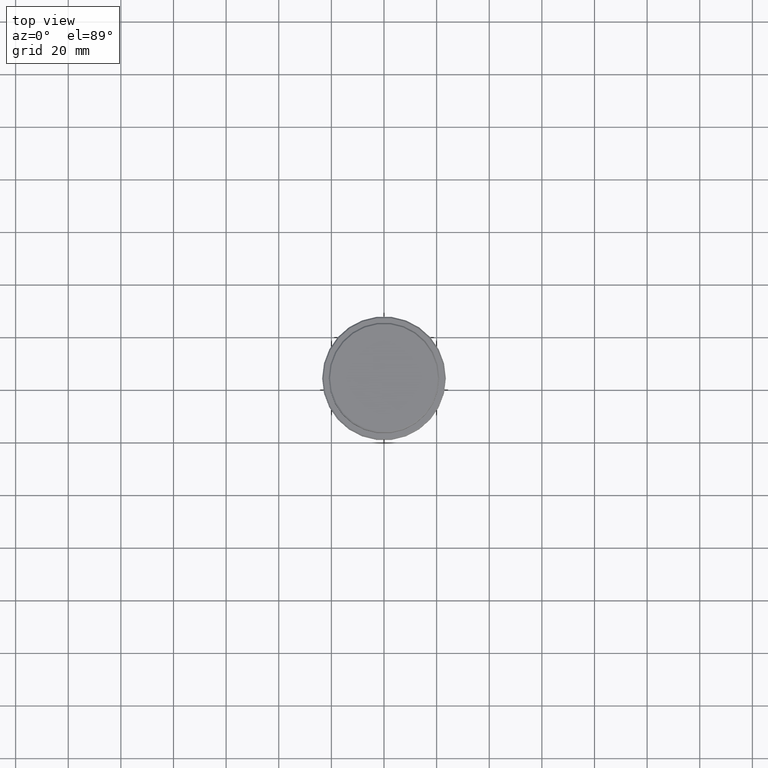
[diagram: clean part render]
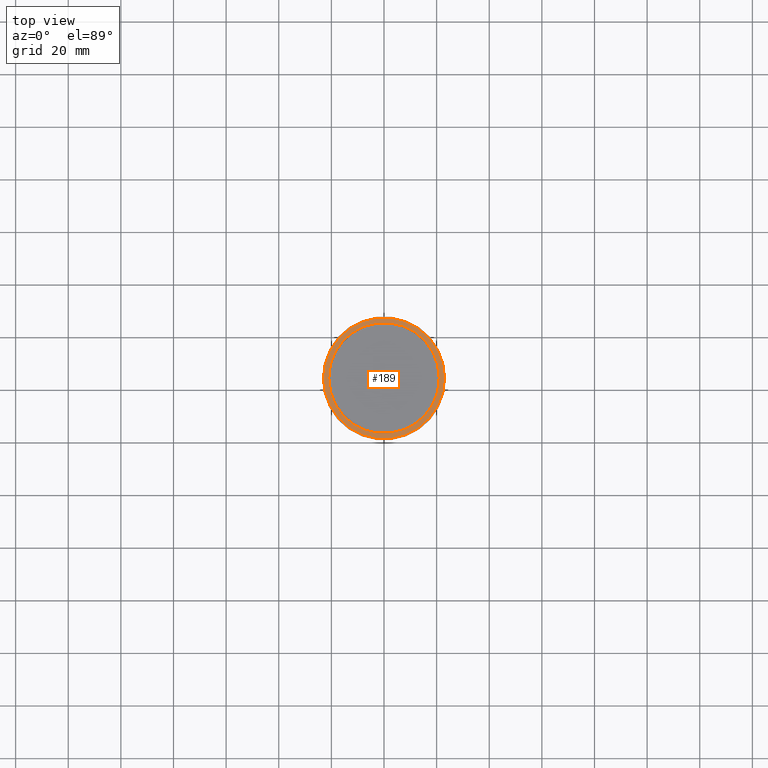
[diagram: same view with one face highlighted and labeled with its STEP entity id]
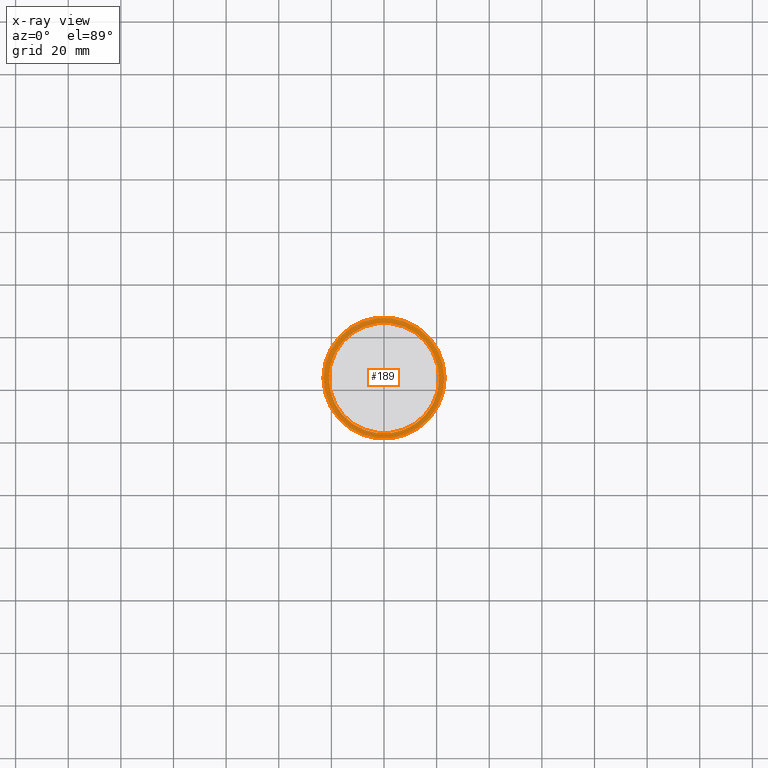
[diagram: x-ray of the same camera — body ghosted, the highlighted face saturated]
A machine part, top view. The second image highlights one B-rep face of the part: STEP entity #189.
The next image is the same camera in x-ray: the body ghosted, the highlighted face saturated — about 0% of this face is hidden behind the body in this view.
In plain terms, the highlighted planar face has unit normal (0, -0, 1).
Its self-contained STEP definition (entity closure, byte-faithful):
#26 = FACE_OUTER_BOUND ( 'NONE', #623, .T. ) ;
#141 = AXIS2_PLACEMENT_3D ( 'NONE', #332, #1211, #150 ) ;
#150 = DIRECTION ( 'NONE',  ( 1.000000000000000000, 0.000000000000000000, 0.000000000000000000 ) ) ;
#152 = ORIENTED_EDGE ( 'NONE', *, *, #225, .T. ) ;
#160 = CIRCLE ( 'NONE', #231, 22.99999999999996803 ) ;
#189 = ADVANCED_FACE ( 'NONE', ( #26, #1006 ), #462, .T. ) ;
#225 = EDGE_CURVE ( 'NONE', #655, #560, #160, .T. ) ;
#231 = AXIS2_PLACEMENT_3D ( 'NONE', #489, #1153, #589 ) ;
#332 = CARTESIAN_POINT ( 'NONE',  ( 0.000000000000000000, 0.000000000000000000, -9.000000000000001776 ) ) ;
#351 = EDGE_CURVE ( 'NONE', #560, #655, #1258, .T. ) ;
#458 = AXIS2_PLACEMENT_3D ( 'NONE', #636, #748, #1075 ) ;
#462 = PLANE ( 'NONE',  #1096 ) ;
#466 = CARTESIAN_POINT ( 'NONE',  ( -22.99999999999996803, 0.000000000000000000, -9.000000000000001776 ) ) ;
#484 = DIRECTION ( 'NONE',  ( -0.000000000000000000, -0.000000000000000000, 1.000000000000000000 ) ) ;
#489 = CARTESIAN_POINT ( 'NONE',  ( 0.000000000000000000, 0.000000000000000000, -9.000000000000001776 ) ) ;
#519 = ORIENTED_EDGE ( 'NONE', *, *, #1179, .T. ) ;
#560 = VERTEX_POINT ( 'NONE', #466 ) ;
#579 = DIRECTION ( 'NONE',  ( 1.000000000000000000, 0.000000000000000000, 0.000000000000000000 ) ) ;
#589 = DIRECTION ( 'NONE',  ( 1.000000000000000000, 0.000000000000000000, 0.000000000000000000 ) ) ;
#608 = AXIS2_PLACEMENT_3D ( 'NONE', #1279, #484, #921 ) ;
#611 = EDGE_CURVE ( 'NONE', #978, #1052, #747, .T. ) ;
#623 = EDGE_LOOP ( 'NONE', ( #1214, #152 ) ) ;
#636 = CARTESIAN_POINT ( 'NONE',  ( 0.000000000000000000, 0.000000000000000000, -9.000000000000001776 ) ) ;
#655 = VERTEX_POINT ( 'NONE', #1381 ) ;
#681 = CARTESIAN_POINT ( 'NONE',  ( 20.99999999999999289, 0.000000000000000000, -9.000000000000001776 ) ) ;
#747 = CIRCLE ( 'NONE', #141, 20.99999999999999289 ) ;
#748 = DIRECTION ( 'NONE',  ( 0.000000000000000000, 0.000000000000000000, -1.000000000000000000 ) ) ;
#760 = EDGE_LOOP ( 'NONE', ( #1047, #519 ) ) ;
#770 = CARTESIAN_POINT ( 'NONE',  ( -20.99999999999999289, 2.571758278209440872E-15, -9.000000000000001776 ) ) ;
#895 = CARTESIAN_POINT ( 'NONE',  ( 0.000000000000000000, 20.49999999999999645, -9.000000000000001776 ) ) ;
#921 = DIRECTION ( 'NONE',  ( 1.000000000000000000, 0.000000000000000000, 0.000000000000000000 ) ) ;
#978 = VERTEX_POINT ( 'NONE', #681 ) ;
#1006 = FACE_BOUND ( 'NONE', #760, .T. ) ;
#1047 = ORIENTED_EDGE ( 'NONE', *, *, #611, .T. ) ;
#1052 = VERTEX_POINT ( 'NONE', #770 ) ;
#1075 = DIRECTION ( 'NONE',  ( 1.000000000000000000, 0.000000000000000000, 0.000000000000000000 ) ) ;
#1096 = AXIS2_PLACEMENT_3D ( 'NONE', #895, #1125, #579 ) ;
#1125 = DIRECTION ( 'NONE',  ( 0.000000000000000000, -0.000000000000000000, 1.000000000000000000 ) ) ;
#1153 = DIRECTION ( 'NONE',  ( -0.000000000000000000, -0.000000000000000000, 1.000000000000000000 ) ) ;
#1179 = EDGE_CURVE ( 'NONE', #1052, #978, #1242, .T. ) ;
#1211 = DIRECTION ( 'NONE',  ( 0.000000000000000000, 0.000000000000000000, -1.000000000000000000 ) ) ;
#1214 = ORIENTED_EDGE ( 'NONE', *, *, #351, .T. ) ;
#1242 = CIRCLE ( 'NONE', #458, 20.99999999999999289 ) ;
#1258 = CIRCLE ( 'NONE', #608, 22.99999999999996803 ) ;
#1279 = CARTESIAN_POINT ( 'NONE',  ( 0.000000000000000000, 0.000000000000000000, -9.000000000000001776 ) ) ;
#1381 = CARTESIAN_POINT ( 'NONE',  ( 22.99999999999996803, 2.847303808017594561E-15, -9.000000000000001776 ) ) ;